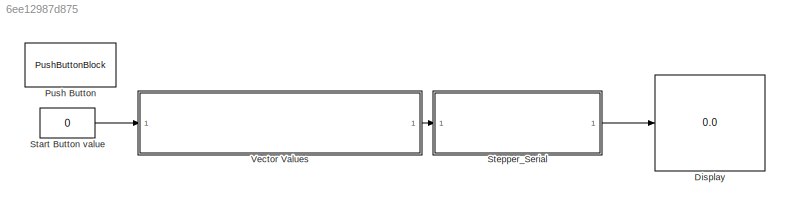
MODEL slx_6ee12987d875
KIND model
CONFIG AbsTol = auto
CONFIG EnableMultiTasking = on
CONFIG FixedStep = auto
CONFIG MaxStep = auto
CONFIG MinStep = auto
CONFIG RelTol = 1e-3
CONFIG SampleTimeConstraint = Unconstrained
CONFIG SolverName = VariableStepAuto
CONFIG StartTime = 0.0
CONFIG StopTime = Inf
BLOCK [Display] Display
  Decimation = 1
  Ports = [1]
BLOCK [PushButtonBlock] Push Button
  LabelPosition = Top
BLOCK [Constant] Start Button value
  Value = 0
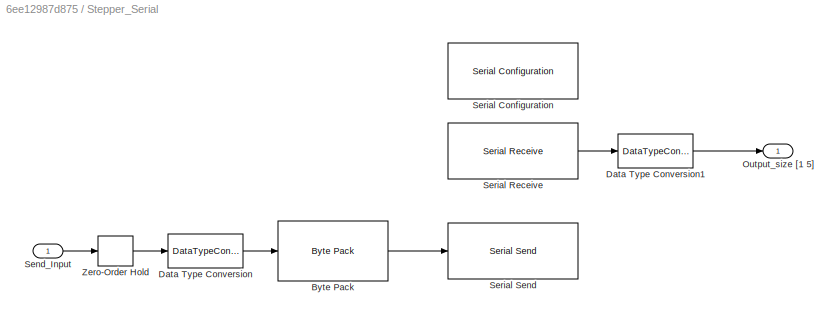
BLOCK [SubSystem] Stepper_Serial
  Ports = [1, 1]
  RequestExecContextInheritance = off
BLOCK [Reference] Stepper_Serial/Byte Pack  REF=etargetslib/Byte Pack
  Ports = [1, 1]
  SourceBlock = etargetslib/Byte Pack
  SourceProductBaseCode = ME
  SourceType = Byte pack
BLOCK [DataTypeConversion] Stepper_Serial/Data Type Conversion
  OutDataTypeStr = single
  RndMeth = Floor
  SaturateOnIntegerOverflow = off
BLOCK [DataTypeConversion] Stepper_Serial/Data Type Conversion1
  OutDataTypeStr = double
  RndMeth = Floor
  SaturateOnIntegerOverflow = off
BLOCK [Outport] Stepper_Serial/Output_size [1 5]
BLOCK [Inport] Stepper_Serial/Send_Input
BLOCK [Reference] Stepper_Serial/Serial Configuration  REF=instrumentseriallib/Serial Configuration
  Ports = []
  Priority = -200000
  SourceBlock = instrumentseriallib/Serial Configuration
  SourceProductBaseCode = IC
  SourceType = matlabshared.seriallib.internal.system.SerialConfiguration
BLOCK [Reference] Stepper_Serial/Serial Receive  REF=instrumentseriallib/Serial Receive
  Ports = [0, 1]
  Priority = 1
  SourceBlock = instrumentseriallib/Serial Receive
  SourceProductBaseCode = IC
  SourceType = matlabshared.seriallib.internal.system.SerialReceive
BLOCK [Reference] Stepper_Serial/Serial Send  REF=instrumentseriallib/Serial Send
  Ports = [1]
  Priority = 1
  SourceBlock = instrumentseriallib/Serial Send
  SourceProductBaseCode = IC
  SourceType = matlabshared.seriallib.internal.system.SerialSend
BLOCK [ZeroOrderHold] Stepper_Serial/Zero-Order Hold
  SampleTime = 0.05
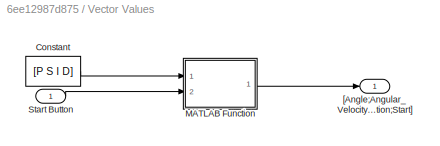
BLOCK [SubSystem] Vector Values
  Ports = [1, 1]
  RequestExecContextInheritance = off
BLOCK [Constant] Vector Values/Constant
  Value = [P S I D]
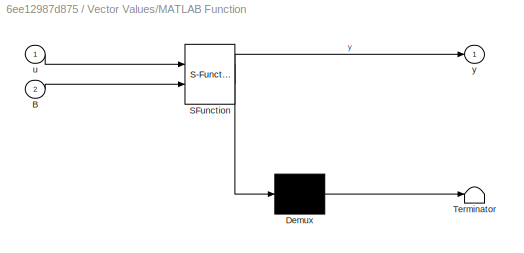
BLOCK [SubSystem] Vector Values/MATLAB Function
  ErrorFcn = Stateflow.Translate.translate
  PermitHierarchicalResolution = ExplicitOnly
  Ports = [2, 1]
  RequestExecContextInheritance = off
  SFBlockType = MATLAB Function
  TreatAsAtomicUnit = on
BLOCK [Demux] Vector Values/MATLAB Function/ Demux 
  Outputs = 1
  Ports = [1, 1]
BLOCK [S-Function] Vector Values/MATLAB Function/ SFunction 
  EnableBusSupport = on
  FunctionName = sf_sfun
  PortCounts = [2 2]
  Ports = [2, 2]
  SFcnIsStateOwnerBlock = off
  SFunctionDeploymentMode = off
  Tag = Stateflow S-Function 2
BLOCK [Terminator] Vector Values/MATLAB Function/ Terminator 
BLOCK [Inport] Vector Values/MATLAB Function/B
  Port = 2
BLOCK [Inport] Vector Values/MATLAB Function/u
BLOCK [Outport] Vector Values/MATLAB Function/y
BLOCK [Inport] Vector Values/Start Button
BLOCK [Outport] Vector Values/[Angle;Angular_Velocity;Iteration;Direction;Start]
LINE Start Button value:1 -> Vector Values:1
LINE Stepper_Serial/Byte Pack:1 -> Stepper_Serial/Serial Send:1
LINE Stepper_Serial/Data Type Conversion1:1 -> Stepper_Serial/Output_size [1 5]:1
LINE Stepper_Serial/Data Type Conversion:1 -> Stepper_Serial/Byte Pack:1
LINE Stepper_Serial/Send_Input:1 -> Stepper_Serial/Zero-Order Hold:1
LINE Stepper_Serial/Serial Receive:1 -> Stepper_Serial/Data Type Conversion1:1
LINE Stepper_Serial/Zero-Order Hold:1 -> Stepper_Serial/Data Type Conversion:1
LINE Stepper_Serial:1 -> Display:1
LINE Vector Values/Constant:1 -> Vector Values/MATLAB Function:1
LINE Vector Values/MATLAB Function:1 -> Vector Values/[Angle;Angular_Velocity;Iteration;Direction;Start]:1
LINE Vector Values/Start Button:1 -> Vector Values/MATLAB Function:2
LINE Vector Values:1 -> Stepper_Serial:1
CHART Vector Values/MATLAB Function states=1 transitions=1
  STATE_LABEL 'eML_blk_kernel()'
  STATE_LABEL 'SCRIPT:\nfunction y = fcn(u, B)\nstep=u(1)/1.8;\ndelay=150000/u(2);\ny = [step delay u(3) u(4) B];\n'
CHART  states=0 transitions=0
